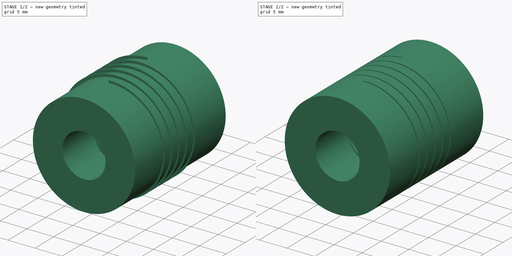
[diagram: build sequence overview — one tinted view per stage of 2, left to right]
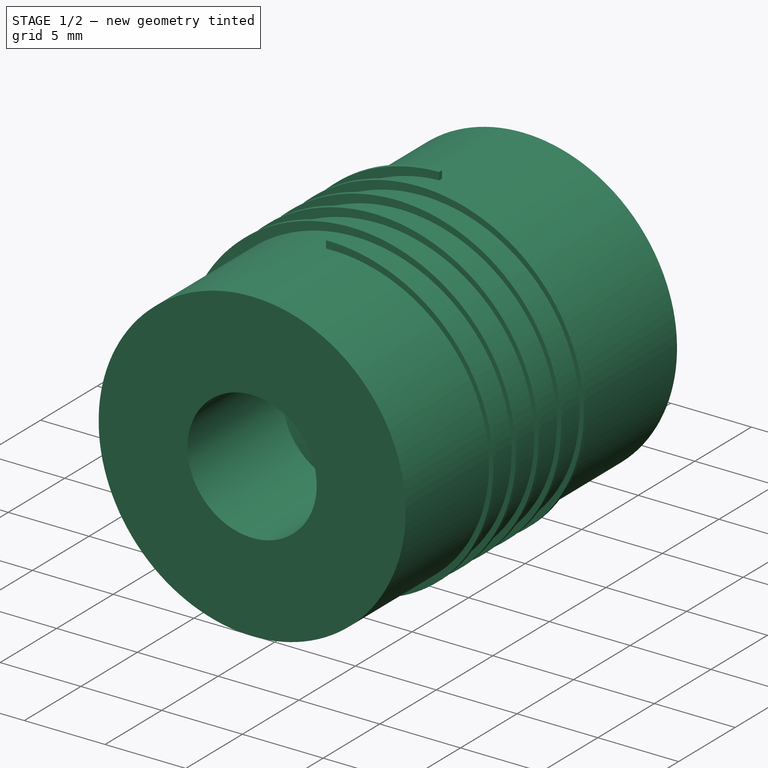
[diagram: stage 1 of 2 — iso view after this stage's code; geometry added in this stage tinted green]
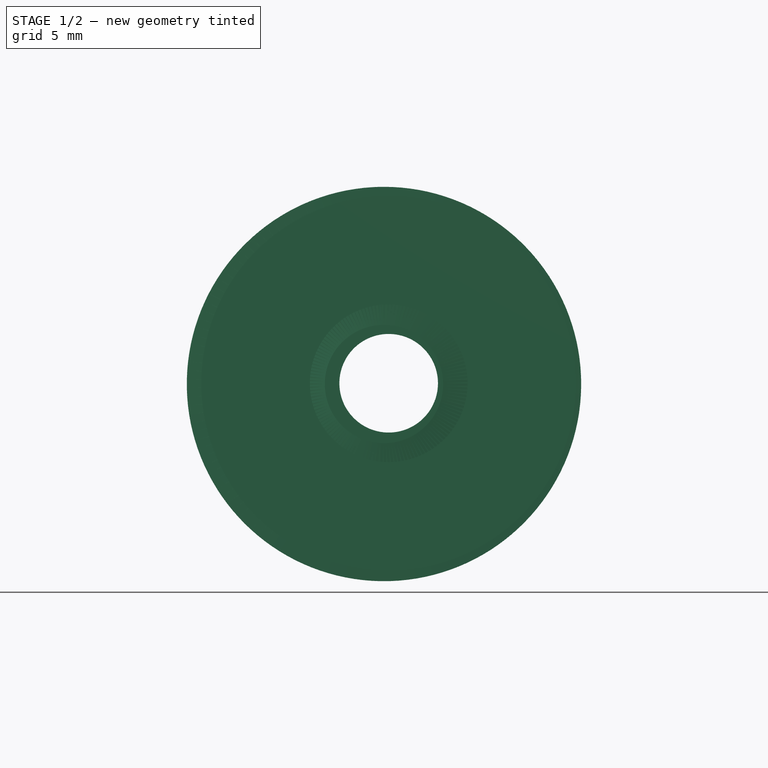
[diagram: stage 1 of 2 — front view after this stage's code; geometry added in this stage tinted green]
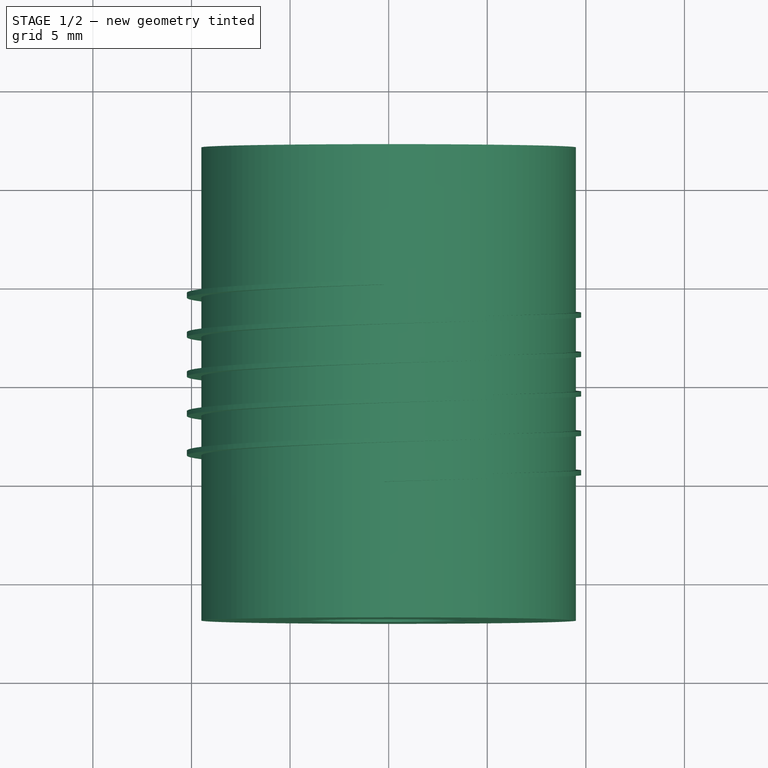
[diagram: stage 1 of 2 — top view after this stage's code; geometry added in this stage tinted green]
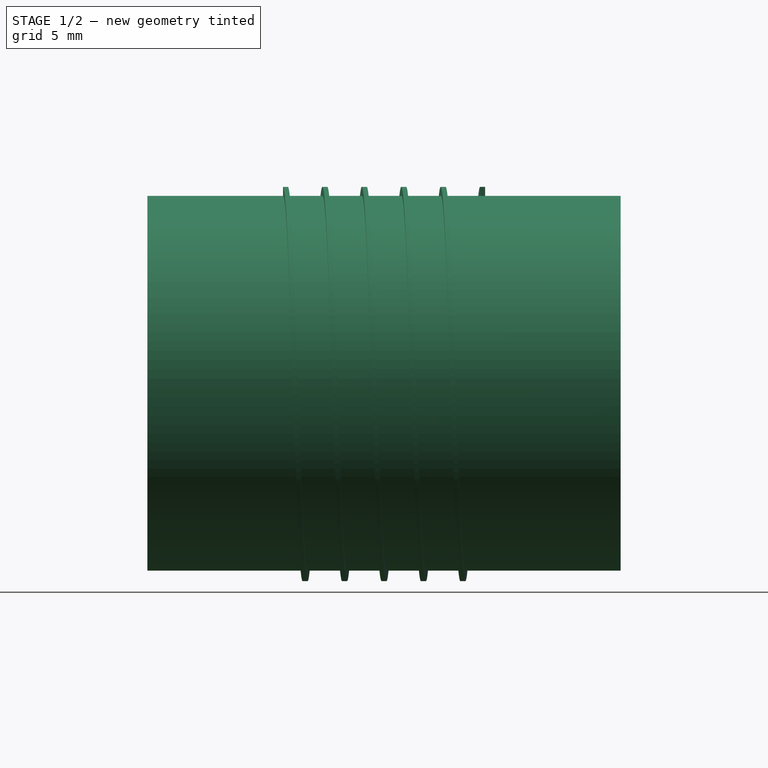
[diagram: stage 1 of 2 — right view after this stage's code; geometry added in this stage tinted green]
FCSTD DOCUMENT  (FreeCAD 0.15R4671 (Git))
Label: coupling5x8
License: All rights reserved
LicenseURL: http://en.wikipedia.org/wiki/All_rights_reserved
objects: Sketcher::SketchObject×2, PartDesign::Revolution×1, Part::Helix×1, Part::Sweep×1, Part::Cut×1
note: 7 computed .brp shape members not serialized (recipe doc carries the construction recipe); baked Part::Feature solids carry a one-line shape summary decoded from their .brp

FEATURE [Sketcher::SketchObject] Sketch  label="cylinder-sketch"
  Placement = pos=(0,0,0) rot=(0.57735,0.57735,0.57735;2.0944rad)
  sketch-geometry (6):
    g0: LineSegment StartX=-12 StartY=4 StartZ=0 EndX=-12 EndY=9.5 EndZ=0
    g1: LineSegment StartX=-12 StartY=9.5 StartZ=0 EndX=12 EndY=9.5 EndZ=0
    g2: LineSegment StartX=12 StartY=9.5 StartZ=0 EndX=12 EndY=2.5 EndZ=0
    g3: LineSegment StartX=12 StartY=2.5 StartZ=0 EndX=6 EndY=2.5 EndZ=0
    g4: LineSegment StartX=6 StartY=2.5 StartZ=0 EndX=6 EndY=4 EndZ=0
    g5: LineSegment StartX=6 StartY=4 StartZ=0 EndX=-12 EndY=4 EndZ=0
  constraints (18):
    c: Vertical(g0)
    c: Coincident(g0,g1)
    c: Horizontal(g1)
    c: Coincident(g1,g2)
    c: Vertical(g2)
    c: Coincident(g2,g3)
    c: Coincident(g3,g4)
    c: Vertical(g4)
    c: Coincident(g4,g5)
    c: Horizontal(g5)
    c: Coincident(g0,g5)
    c: DistanceX(g0,g1) = 24
    c: Horizontal(g3)
    c: Symmetric(g1,g0,g-2)
    c: DistanceY(g-1,g2) = 2.5
    c: DistanceY(g-1,g0) = 4
    c: DistanceY(g-1,g0) = 9.5
    c: DistanceX(g3,g2) = 6
FEATURE [PartDesign::Revolution] Revolution  label="cylinder"
  Angle = 360
  Axis = (0,1,0)
  Base = (0,0,0)
  Placement = pos=(0,0,0) rot=(0.57735,0.57735,0.57735;2.0944rad)
  ReferenceAxis = -> Sketch [H_Axis]
  Sketch = -> Sketch
FEATURE [Part::Helix] Helix  label="spring-helix"
  Angle = 0
  Height = 10
  LocalCoord = 0
  Pitch = 2
  Placement = pos=(0,-5,0) rot=(-0.57735,-0.57735,-0.57735;2.0944rad)
  Radius = 3
  Style = 1
FEATURE [Sketcher::SketchObject] Sketch001  label="spring-sketch"
  Placement = pos=(0,0,0) rot=(0.57735,0.57735,0.57735;2.0944rad)
  sketch-geometry (5):
    g0: LineSegment StartX=-5.125 StartY=10 StartZ=0 EndX=-4.875 EndY=10 EndZ=0
    g1: LineSegment StartX=-4.875 StartY=10 StartZ=0 EndX=-4.875 EndY=3 EndZ=0
    g2: LineSegment StartX=-4.875 StartY=3 StartZ=0 EndX=-5.125 EndY=3 EndZ=0
    g3: LineSegment StartX=-5.125 StartY=3 StartZ=0 EndX=-5.125 EndY=10 EndZ=0
    g4: GeomPoint [constr] X=-5 Y=3 Z=0
  constraints (14):
    c: Coincident(g0,g1)
    c: Coincident(g1,g2)
    c: Coincident(g2,g3)
    c: Coincident(g3,g0)
    c: Horizontal(g0)
    c: Horizontal(g2)
    c: Vertical(g1)
    c: Vertical(g3)
    c: PointOnObject(g4,g2)
    c: Symmetric(g1,g2,g4)
    c: DistanceX(g-1,g4) = -5
    c: DistanceY(g-1,g4) = 3
    c: DistanceY(g1,g0) = 7
    c: DistanceX(g0,g0) = 0.25
FEATURE [Part::Sweep] Sweep  label="spring-neg"
  Frenet = true
  Placement = pos=(-0.23744,3.58818e-07,-0.0386675) rot=(0,0,1;0rad)
  Sections = -> [Sketch001]
  Solid = true
  Spine = -> Helix [Edge1,Edge2,Edge3,Edge4,Edge5]
  Transition = 1
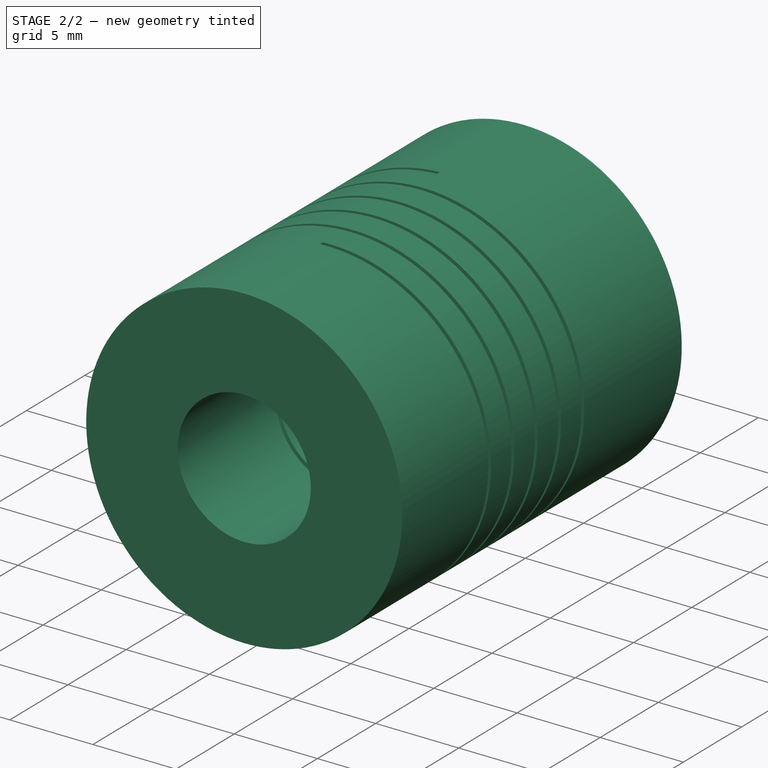
[diagram: stage 2 of 2 — iso view after this stage's code; geometry added in this stage tinted green]
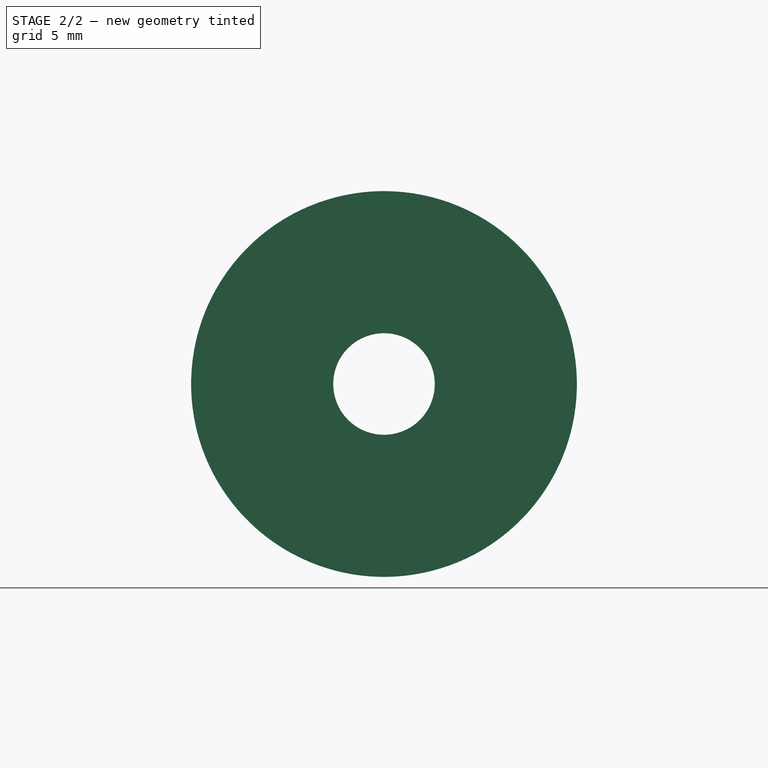
[diagram: stage 2 of 2 — front view after this stage's code; geometry added in this stage tinted green]
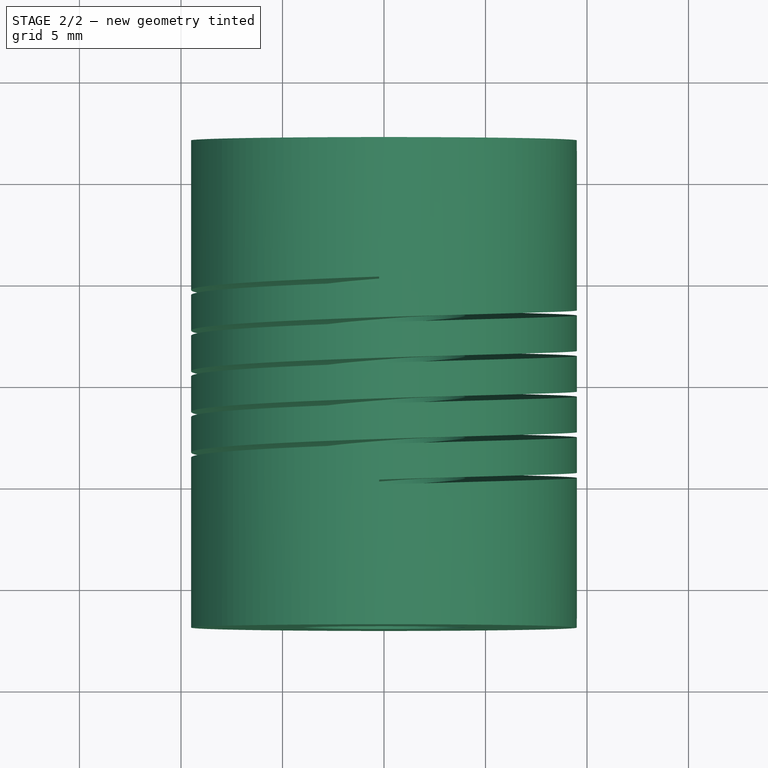
[diagram: stage 2 of 2 — top view after this stage's code; geometry added in this stage tinted green]
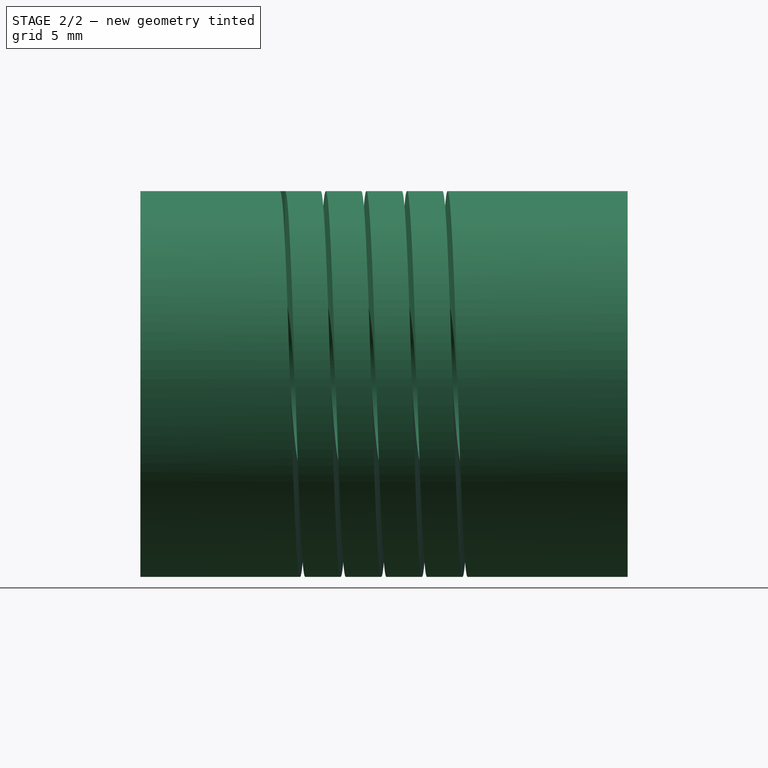
[diagram: stage 2 of 2 — right view after this stage's code; geometry added in this stage tinted green]
FEATURE [Part::Cut] Cut  label="coupling5x8"
  Base = -> Revolution
  Tool = -> Sweep
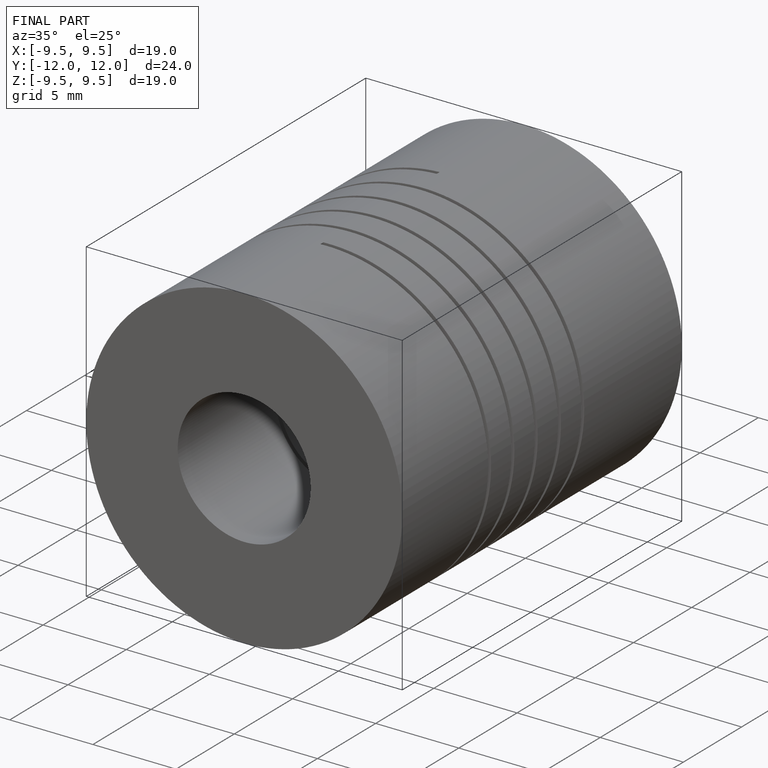
[diagram: finished part — iso view with bounding-box wireframe]
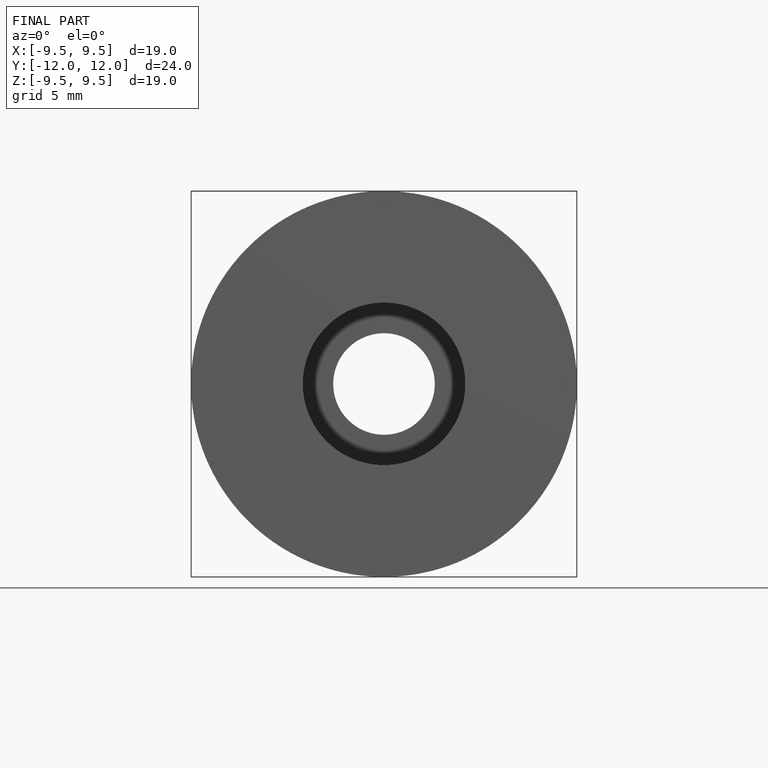
[diagram: finished part — front view with bounding-box wireframe]
